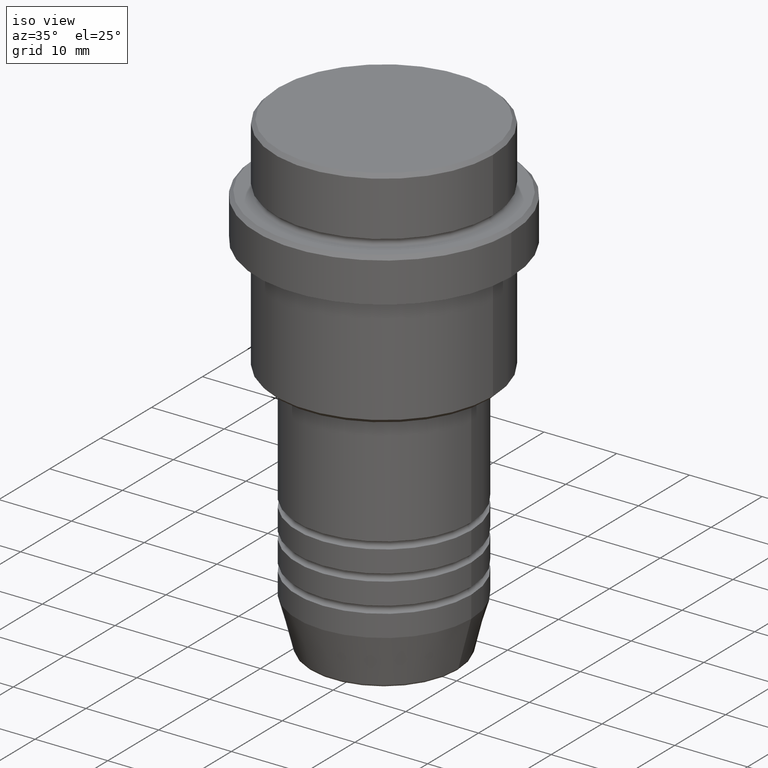
[diagram: clean part render]
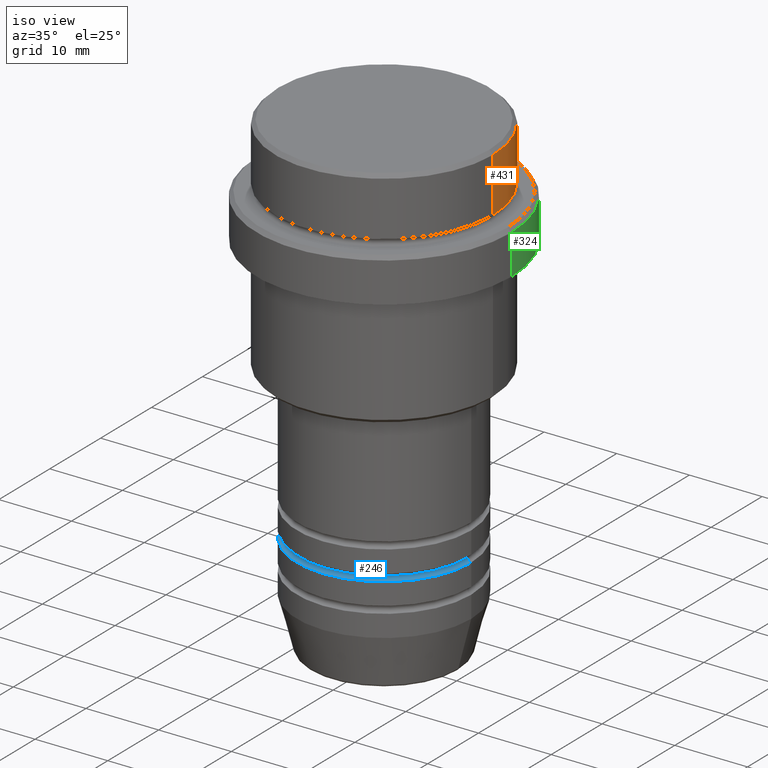
[diagram: same view with three faces highlighted in distinct colors, each labeled with its STEP entity id]
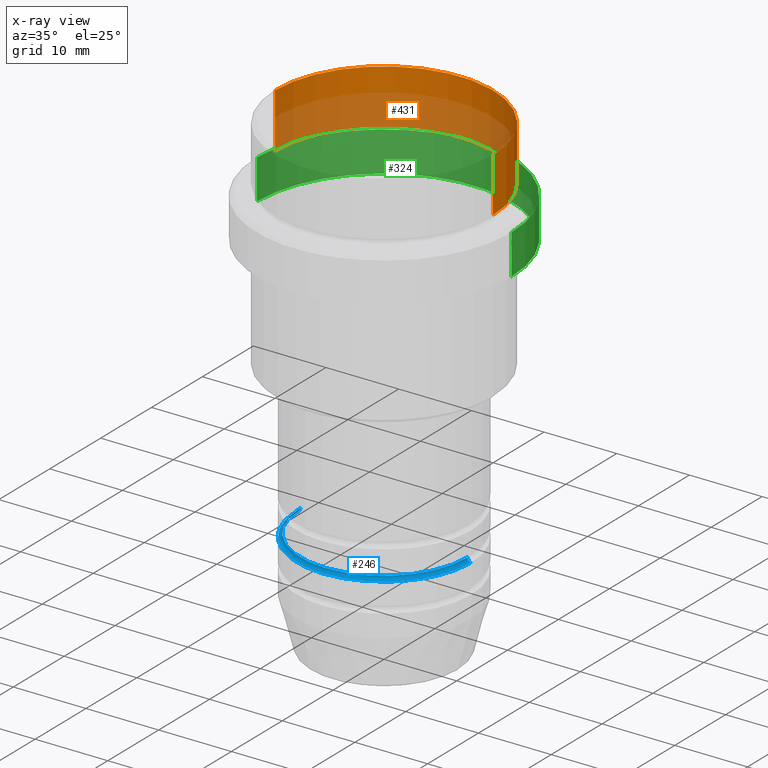
[diagram: x-ray of the same camera — body ghosted, the three highlighted faces saturated]
A machine part, iso view with three faces highlighted in distinct colors.
The next image is the same camera in x-ray (body ghosted, the three faces saturated) — at least one of them is partly hidden behind the body in this view.
Their STEP definitions:

[orange] entity #431 — the highlighted cylindrical surface (partial cylindrical patch) has radius 15 mm, axis along (-0, -0, 1).
#19 = VECTOR ( 'NONE', #497, 1000.000000000000000 ) ;
#49 = LINE ( 'NONE', #261, #782 ) ;
#50 = CARTESIAN_POINT ( 'NONE',  ( 0.000000000000000000, 0.000000000000000000, 0.000000000000000000 ) ) ;
#62 = CARTESIAN_POINT ( 'NONE',  ( -15.00000000000000000, 1.836970198721029589E-15, 0.000000000000000000 ) ) ;
#74 = DIRECTION ( 'NONE',  ( 0.000000000000000000, 0.000000000000000000, -1.000000000000000000 ) ) ;
#107 = ORIENTED_EDGE ( 'NONE', *, *, #450, .T. ) ;
#217 = AXIS2_PLACEMENT_3D ( 'NONE', #525, #74, #513 ) ;
#261 = CARTESIAN_POINT ( 'NONE',  ( 15.00000000000000000, 0.000000000000000000, 0.000000000000000000 ) ) ;
#262 = DIRECTION ( 'NONE',  ( 1.000000000000000000, 0.000000000000000000, 0.000000000000000000 ) ) ;
#363 = ORIENTED_EDGE ( 'NONE', *, *, #731, .T. ) ;
#385 = DIRECTION ( 'NONE',  ( -0.000000000000000000, -0.000000000000000000, 1.000000000000000000 ) ) ;
#431 = ADVANCED_FACE ( 'NONE', ( #679 ), #1152, .T. ) ;
#436 = EDGE_CURVE ( 'NONE', #1263, #1282, #1134, .T. ) ;
#448 = CARTESIAN_POINT ( 'NONE',  ( 0.000000000000000000, 0.000000000000000000, -7.999999999999998224 ) ) ;
#450 = EDGE_CURVE ( 'NONE', #1282, #1183, #1396, .T. ) ;
#464 = DIRECTION ( 'NONE',  ( -0.000000000000000000, -0.000000000000000000, 1.000000000000000000 ) ) ;
#497 = DIRECTION ( 'NONE',  ( -0.000000000000000000, -0.000000000000000000, 1.000000000000000000 ) ) ;
#513 = DIRECTION ( 'NONE',  ( 1.000000000000000000, 0.000000000000000000, 0.000000000000000000 ) ) ;
#525 = CARTESIAN_POINT ( 'NONE',  ( 0.000000000000000000, 0.000000000000000000, -0.4999999999999900080 ) ) ;
#545 = EDGE_LOOP ( 'NONE', ( #363, #742, #107, #592 ) ) ;
#592 = ORIENTED_EDGE ( 'NONE', *, *, #882, .F. ) ;
#612 = DIRECTION ( 'NONE',  ( -0.000000000000000000, -0.000000000000000000, 1.000000000000000000 ) ) ;
#678 = DIRECTION ( 'NONE',  ( 1.000000000000000000, 0.000000000000000000, 0.000000000000000000 ) ) ;
#679 = FACE_OUTER_BOUND ( 'NONE', #545, .T. ) ;
#731 = EDGE_CURVE ( 'NONE', #989, #1263, #848, .T. ) ;
#742 = ORIENTED_EDGE ( 'NONE', *, *, #436, .T. ) ;
#782 = VECTOR ( 'NONE', #385, 1000.000000000000000 ) ;
#848 = CIRCLE ( 'NONE', #855, 15.00000000000000000 ) ;
#855 = AXIS2_PLACEMENT_3D ( 'NONE', #448, #464, #678 ) ;
#882 = EDGE_CURVE ( 'NONE', #989, #1183, #49, .T. ) ;
#989 = VERTEX_POINT ( 'NONE', #1340 ) ;
#1001 = CARTESIAN_POINT ( 'NONE',  ( -15.00000000000000000, 1.836970198721029589E-15, -7.999999999999998224 ) ) ;
#1011 = CARTESIAN_POINT ( 'NONE',  ( -15.00000000000000000, 1.836970198721029589E-15, -0.4999999999999900080 ) ) ;
#1134 = LINE ( 'NONE', #62, #19 ) ;
#1152 = CYLINDRICAL_SURFACE ( 'NONE', #1416, 15.00000000000000000 ) ;
#1183 = VERTEX_POINT ( 'NONE', #1195 ) ;
#1195 = CARTESIAN_POINT ( 'NONE',  ( 15.00000000000000000, 0.000000000000000000, -0.4999999999999900080 ) ) ;
#1263 = VERTEX_POINT ( 'NONE', #1001 ) ;
#1282 = VERTEX_POINT ( 'NONE', #1011 ) ;
#1340 = CARTESIAN_POINT ( 'NONE',  ( 15.00000000000000000, 0.000000000000000000, -7.999999999999998224 ) ) ;
#1396 = CIRCLE ( 'NONE', #217, 15.00000000000000000 ) ;
#1416 = AXIS2_PLACEMENT_3D ( 'NONE', #50, #612, #262 ) ;

[blue] entity #246 — the highlighted toroidal blend (fillet) surface has major radius 12 mm and minor (blend) radius 0.5 mm.
#11 = ORIENTED_EDGE ( 'NONE', *, *, #844, .T. ) ;
#42 = ORIENTED_EDGE ( 'NONE', *, *, #54, .T. ) ;
#51 = EDGE_CURVE ( 'NONE', #1162, #438, #1169, .T. ) ;
#54 = EDGE_CURVE ( 'NONE', #556, #503, #373, .T. ) ;
#130 = DIRECTION ( 'NONE',  ( 1.224646799147353207E-16, 1.000000000000000000, 0.000000000000000000 ) ) ;
#172 = DIRECTION ( 'NONE',  ( 1.000000000000000000, 0.000000000000000000, 0.000000000000000000 ) ) ;
#213 = AXIS2_PLACEMENT_3D ( 'NONE', #827, #275, #716 ) ;
#246 = ADVANCED_FACE ( 'NONE', ( #1410 ), #966, .F. ) ;
#275 = DIRECTION ( 'NONE',  ( 0.000000000000000000, -1.000000000000000000, 0.000000000000000000 ) ) ;
#278 = CIRCLE ( 'NONE', #213, 0.5000000000000004441 ) ;
#345 = DIRECTION ( 'NONE',  ( -1.000000000000000000, 1.224646799147353454E-16, 0.000000000000000000 ) ) ;
#373 = CIRCLE ( 'NONE', #913, 12.00000000000000000 ) ;
#374 = CARTESIAN_POINT ( 'NONE',  ( 11.49999999999998934, 0.000000000000000000, -51.49999999999989342 ) ) ;
#380 = CARTESIAN_POINT ( 'NONE',  ( -12.00000000000000000, 1.469576158976823947E-15, -51.99999999999989342 ) ) ;
#433 = CARTESIAN_POINT ( 'NONE',  ( -11.49999999999998934, 1.438959988998139371E-15, -51.49999999999989342 ) ) ;
#438 = VERTEX_POINT ( 'NONE', #374 ) ;
#452 = CARTESIAN_POINT ( 'NONE',  ( -11.99999999999998934, 1.469576158976822567E-15, -51.49999999999989342 ) ) ;
#503 = VERTEX_POINT ( 'NONE', #712 ) ;
#556 = VERTEX_POINT ( 'NONE', #380 ) ;
#604 = CARTESIAN_POINT ( 'NONE',  ( 0.000000000000000000, 0.000000000000000000, -51.99999999999989342 ) ) ;
#627 = DIRECTION ( 'NONE',  ( -0.000000000000000000, -0.000000000000000000, 1.000000000000000000 ) ) ;
#641 = CARTESIAN_POINT ( 'NONE',  ( 0.000000000000000000, 0.000000000000000000, -51.49999999999989342 ) ) ;
#647 = DIRECTION ( 'NONE',  ( -0.000000000000000000, -0.000000000000000000, 1.000000000000000000 ) ) ;
#712 = CARTESIAN_POINT ( 'NONE',  ( 12.00000000000000000, 0.000000000000000000, -51.99999999999989342 ) ) ;
#716 = DIRECTION ( 'NONE',  ( 0.000000000000000000, 0.000000000000000000, -1.000000000000000000 ) ) ;
#723 = DIRECTION ( 'NONE',  ( 1.000000000000000000, 0.000000000000000000, 0.000000000000000000 ) ) ;
#762 = EDGE_LOOP ( 'NONE', ( #1290, #11, #42, #1064 ) ) ;
#827 = CARTESIAN_POINT ( 'NONE',  ( 11.99999999999998934, 0.000000000000000000, -51.49999999999989342 ) ) ;
#844 = EDGE_CURVE ( 'NONE', #1162, #556, #1281, .T. ) ;
#891 = AXIS2_PLACEMENT_3D ( 'NONE', #452, #130, #345 ) ;
#913 = AXIS2_PLACEMENT_3D ( 'NONE', #604, #627, #172 ) ;
#966 = TOROIDAL_SURFACE ( 'NONE', #1056, 11.99999999999998934, 0.5000000000000000000 ) ;
#973 = EDGE_CURVE ( 'NONE', #438, #503, #278, .T. ) ;
#1048 = CARTESIAN_POINT ( 'NONE',  ( 0.000000000000000000, 0.000000000000000000, -51.49999999999989342 ) ) ;
#1056 = AXIS2_PLACEMENT_3D ( 'NONE', #641, #647, #1417 ) ;
#1064 = ORIENTED_EDGE ( 'NONE', *, *, #973, .F. ) ;
#1162 = VERTEX_POINT ( 'NONE', #433 ) ;
#1169 = CIRCLE ( 'NONE', #1188, 11.49999999999998934 ) ;
#1188 = AXIS2_PLACEMENT_3D ( 'NONE', #1048, #1379, #723 ) ;
#1281 = CIRCLE ( 'NONE', #891, 0.5000000000000004441 ) ;
#1290 = ORIENTED_EDGE ( 'NONE', *, *, #51, .F. ) ;
#1379 = DIRECTION ( 'NONE',  ( -0.000000000000000000, -0.000000000000000000, 1.000000000000000000 ) ) ;
#1410 = FACE_OUTER_BOUND ( 'NONE', #762, .T. ) ;
#1417 = DIRECTION ( 'NONE',  ( 1.000000000000000000, 0.000000000000000000, 0.000000000000000000 ) ) ;

[green] entity #324 — the highlighted cylindrical surface (partial cylindrical patch) has radius 17.5 mm, axis along (-0, -0, 1).
#30 = DIRECTION ( 'NONE',  ( -0.000000000000000000, -0.000000000000000000, 1.000000000000000000 ) ) ;
#35 = VERTEX_POINT ( 'NONE', #506 ) ;
#120 = DIRECTION ( 'NONE',  ( -0.000000000000000000, -0.000000000000000000, 1.000000000000000000 ) ) ;
#216 = VECTOR ( 'NONE', #591, 1000.000000000000000 ) ;
#269 = VERTEX_POINT ( 'NONE', #899 ) ;
#303 = VECTOR ( 'NONE', #120, 1000.000000000000000 ) ;
#324 = ADVANCED_FACE ( 'NONE', ( #466 ), #580, .T. ) ;
#330 = AXIS2_PLACEMENT_3D ( 'NONE', #469, #903, #365 ) ;
#365 = DIRECTION ( 'NONE',  ( 1.000000000000000000, 0.000000000000000000, 0.000000000000000000 ) ) ;
#424 = AXIS2_PLACEMENT_3D ( 'NONE', #588, #453, #684 ) ;
#453 = DIRECTION ( 'NONE',  ( -0.000000000000000000, -0.000000000000000000, 1.000000000000000000 ) ) ;
#466 = FACE_OUTER_BOUND ( 'NONE', #1006, .T. ) ;
#469 = CARTESIAN_POINT ( 'NONE',  ( 0.000000000000000000, 0.000000000000000000, -9.499999999999985789 ) ) ;
#506 = CARTESIAN_POINT ( 'NONE',  ( -17.50000000000000000, 2.143131898507868248E-15, -15.00000000000000000 ) ) ;
#512 = AXIS2_PLACEMENT_3D ( 'NONE', #1235, #30, #940 ) ;
#522 = ORIENTED_EDGE ( 'NONE', *, *, #1385, .F. ) ;
#523 = CARTESIAN_POINT ( 'NONE',  ( 17.50000000000000000, 0.000000000000000000, -9.499999999999985789 ) ) ;
#580 = CYLINDRICAL_SURFACE ( 'NONE', #424, 17.50000000000000000 ) ;
#588 = CARTESIAN_POINT ( 'NONE',  ( 0.000000000000000000, 0.000000000000000000, 0.000000000000000000 ) ) ;
#591 = DIRECTION ( 'NONE',  ( -0.000000000000000000, -0.000000000000000000, 1.000000000000000000 ) ) ;
#609 = CIRCLE ( 'NONE', #512, 17.50000000000000000 ) ;
#618 = CARTESIAN_POINT ( 'NONE',  ( 17.50000000000000000, 0.000000000000000000, -15.00000000000000000 ) ) ;
#629 = ORIENTED_EDGE ( 'NONE', *, *, #934, .T. ) ;
#684 = DIRECTION ( 'NONE',  ( 1.000000000000000000, 0.000000000000000000, 0.000000000000000000 ) ) ;
#687 = CARTESIAN_POINT ( 'NONE',  ( -17.50000000000000000, 2.143131898507868248E-15, 0.000000000000000000 ) ) ;
#770 = EDGE_CURVE ( 'NONE', #35, #269, #1102, .T. ) ;
#863 = EDGE_CURVE ( 'NONE', #269, #1045, #1116, .T. ) ;
#899 = CARTESIAN_POINT ( 'NONE',  ( -17.50000000000000000, 2.143131898507868248E-15, -9.499999999999985789 ) ) ;
#903 = DIRECTION ( 'NONE',  ( 0.000000000000000000, 0.000000000000000000, -1.000000000000000000 ) ) ;
#908 = VERTEX_POINT ( 'NONE', #618 ) ;
#924 = CARTESIAN_POINT ( 'NONE',  ( 17.50000000000000000, 0.000000000000000000, 0.000000000000000000 ) ) ;
#934 = EDGE_CURVE ( 'NONE', #908, #35, #609, .T. ) ;
#940 = DIRECTION ( 'NONE',  ( 1.000000000000000000, 0.000000000000000000, 0.000000000000000000 ) ) ;
#1006 = EDGE_LOOP ( 'NONE', ( #629, #1158, #1349, #522 ) ) ;
#1045 = VERTEX_POINT ( 'NONE', #523 ) ;
#1102 = LINE ( 'NONE', #687, #303 ) ;
#1116 = CIRCLE ( 'NONE', #330, 17.50000000000000000 ) ;
#1158 = ORIENTED_EDGE ( 'NONE', *, *, #770, .T. ) ;
#1235 = CARTESIAN_POINT ( 'NONE',  ( 0.000000000000000000, 0.000000000000000000, -15.00000000000000000 ) ) ;
#1338 = LINE ( 'NONE', #924, #216 ) ;
#1349 = ORIENTED_EDGE ( 'NONE', *, *, #863, .T. ) ;
#1385 = EDGE_CURVE ( 'NONE', #908, #1045, #1338, .T. ) ;